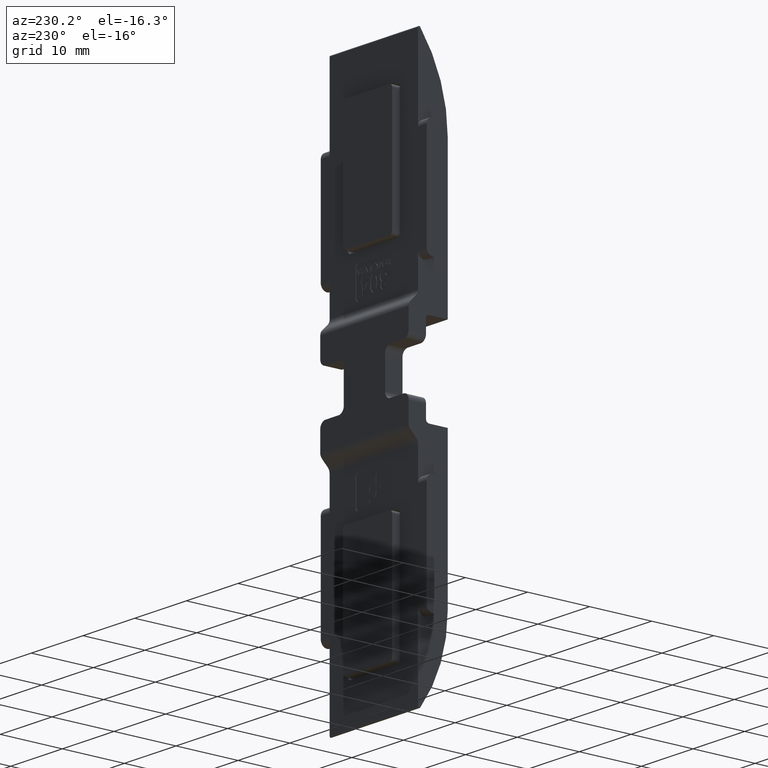
[diagram: clean part render]
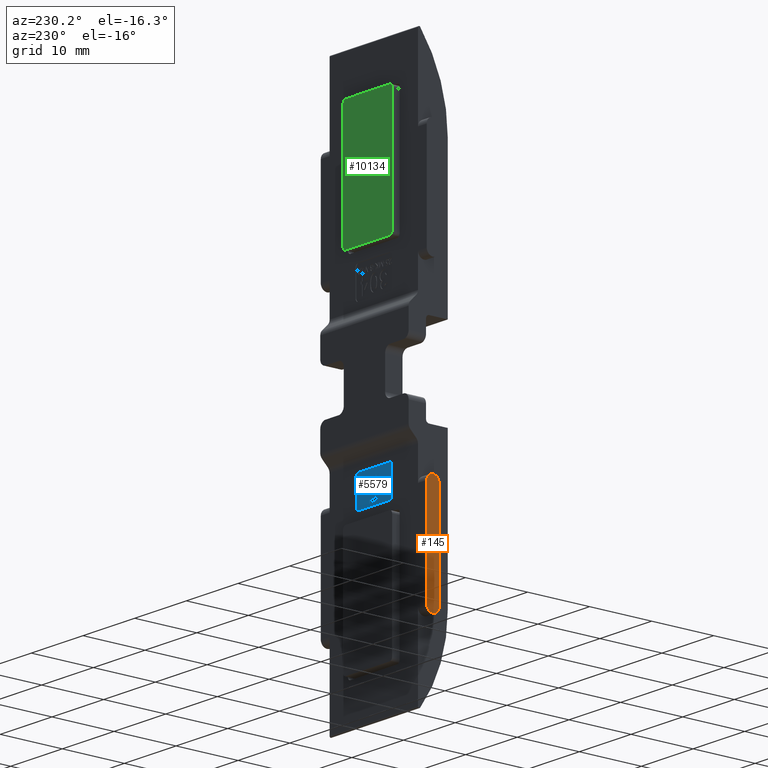
[diagram: same view with three faces highlighted in distinct colors, each labeled with its STEP entity id]
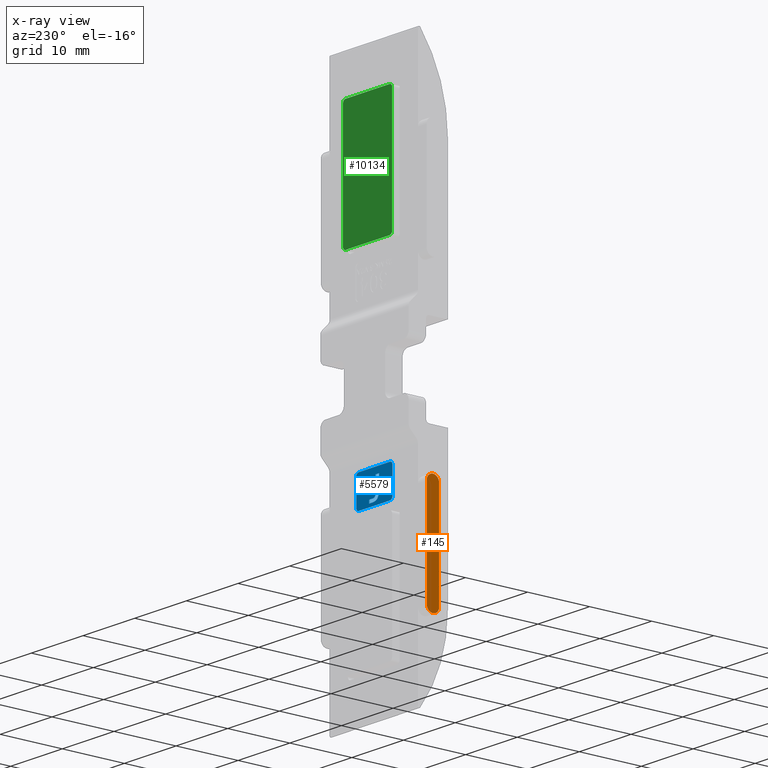
[diagram: x-ray of the same camera — body ghosted, the three highlighted faces saturated]
A machine part, auxiliary view with three faces highlighted in distinct colors.
The next image is the same camera in x-ray (body ghosted, the three faces saturated) — at least one of them is partly hidden behind the body in this view.
Their STEP definitions:

[orange] entity #145 — the highlighted planar face has unit normal (-1, 0, 0).
#126 = AXIS2_PLACEMENT_3D ( 'NONE', #8300, #2605, #9572 ) ;
#145 = ADVANCED_FACE ( 'NONE', ( #457 ), #7354, .T. ) ;
#457 = FACE_OUTER_BOUND ( 'NONE', #6140, .T. ) ;
#645 = VECTOR ( 'NONE', #11341, 1000.000000000000000 ) ;
#806 = CARTESIAN_POINT ( 'NONE',  ( -10.25000000000000000, 2.799999999999998500, -31.00000000000000000 ) ) ;
#816 = ORIENTED_EDGE ( 'NONE', *, *, #7956, .T. ) ;
#826 = DIRECTION ( 'NONE',  ( 0.0000000000000000000, 0.0000000000000000000, 1.000000000000000000 ) ) ;
#1366 = CARTESIAN_POINT ( 'NONE',  ( -10.25000000000000000, 2.799999999999998500, -31.00000000000000000 ) ) ;
#1497 = DIRECTION ( 'NONE',  ( 0.0000000000000000000, 0.0000000000000000000, 1.000000000000000000 ) ) ;
#1642 = VECTOR ( 'NONE', #6760, 1000.000000000000000 ) ;
#1842 = EDGE_CURVE ( 'NONE', #11228, #11997, #11989, .T. ) ;
#1900 = CARTESIAN_POINT ( 'NONE',  ( -10.25000000000000000, 2.799999999999998500, -15.00000000000000400 ) ) ;
#2177 = EDGE_CURVE ( 'NONE', #11997, #3639, #10938, .T. ) ;
#2605 = DIRECTION ( 'NONE',  ( -1.000000000000000000, 0.0000000000000000000, 0.0000000000000000000 ) ) ;
#2915 = ORIENTED_EDGE ( 'NONE', *, *, #6165, .T. ) ;
#3160 = LINE ( 'NONE', #806, #645 ) ;
#3183 = VERTEX_POINT ( 'NONE', #3676 ) ;
#3639 = VERTEX_POINT ( 'NONE', #1366 ) ;
#3676 = CARTESIAN_POINT ( 'NONE',  ( -10.25000000000000000, 4.799999999999998900, -15.00000000000000400 ) ) ;
#4070 = AXIS2_PLACEMENT_3D ( 'NONE', #9187, #9092, #1497 ) ;
#4790 = LINE ( 'NONE', #10647, #1642 ) ;
#4847 = CARTESIAN_POINT ( 'NONE',  ( -10.25000000000000000, 3.799999999999998500, -32.00000000000000000 ) ) ;
#5151 = AXIS2_PLACEMENT_3D ( 'NONE', #12212, #11370, #9378 ) ;
#5371 = ORIENTED_EDGE ( 'NONE', *, *, #2177, .T. ) ;
#5563 = CARTESIAN_POINT ( 'NONE',  ( -10.25000000000000000, 3.799999999999998500, -31.00000000000000000 ) ) ;
#6140 = EDGE_LOOP ( 'NONE', ( #7217, #5371, #10223, #816, #2915 ) ) ;
#6165 = EDGE_CURVE ( 'NONE', #3183, #11228, #4790, .T. ) ;
#6264 = AXIS2_PLACEMENT_3D ( 'NONE', #5563, #12235, #826 ) ;
#6760 = DIRECTION ( 'NONE',  ( -0.0000000000000000000, -0.0000000000000000000, -1.000000000000000000 ) ) ;
#7217 = ORIENTED_EDGE ( 'NONE', *, *, #1842, .T. ) ;
#7354 = PLANE ( 'NONE',  #126 ) ;
#7918 = CARTESIAN_POINT ( 'NONE',  ( -10.25000000000000000, 4.799999999999998900, -31.00000000000000000 ) ) ;
#7956 = EDGE_CURVE ( 'NONE', #8591, #3183, #9283, .T. ) ;
#8141 = EDGE_CURVE ( 'NONE', #3639, #8591, #3160, .T. ) ;
#8300 = CARTESIAN_POINT ( 'NONE',  ( -10.25000000000000000, 3.799999999999998500, -31.00000000000000000 ) ) ;
#8591 = VERTEX_POINT ( 'NONE', #1900 ) ;
#9092 = DIRECTION ( 'NONE',  ( -1.000000000000000000, 0.0000000000000000000, 0.0000000000000000000 ) ) ;
#9187 = CARTESIAN_POINT ( 'NONE',  ( -10.25000000000000000, 3.799999999999998500, -15.00000000000000400 ) ) ;
#9283 = CIRCLE ( 'NONE', #4070, 1.000000000000000900 ) ;
#9378 = DIRECTION ( 'NONE',  ( 0.0000000000000000000, 0.0000000000000000000, 1.000000000000000000 ) ) ;
#9572 = DIRECTION ( 'NONE',  ( 0.0000000000000000000, 0.0000000000000000000, 1.000000000000000000 ) ) ;
#10223 = ORIENTED_EDGE ( 'NONE', *, *, #8141, .T. ) ;
#10647 = CARTESIAN_POINT ( 'NONE',  ( -10.25000000000000000, 4.799999999999998900, -31.00000000000000000 ) ) ;
#10938 = CIRCLE ( 'NONE', #6264, 1.000000000000000900 ) ;
#11228 = VERTEX_POINT ( 'NONE', #7918 ) ;
#11341 = DIRECTION ( 'NONE',  ( 0.0000000000000000000, 0.0000000000000000000, 1.000000000000000000 ) ) ;
#11370 = DIRECTION ( 'NONE',  ( -1.000000000000000000, 0.0000000000000000000, 0.0000000000000000000 ) ) ;
#11989 = CIRCLE ( 'NONE', #5151, 1.000000000000000900 ) ;
#11997 = VERTEX_POINT ( 'NONE', #4847 ) ;
#12212 = CARTESIAN_POINT ( 'NONE',  ( -10.25000000000000000, 3.799999999999998500, -31.00000000000000000 ) ) ;
#12235 = DIRECTION ( 'NONE',  ( -1.000000000000000000, 0.0000000000000000000, 0.0000000000000000000 ) ) ;

[blue] entity #5579 — the highlighted planar face has unit normal (0, 1, 0).
#85 = CARTESIAN_POINT ( 'NONE',  ( 0.03725859233113291300, 4.699999999999994800, -14.93038602905815000 ) ) ;
#87 = EDGE_LOOP ( 'NONE', ( #4038, #11848, #10420, #4034, #10658, #8371, #1331, #7331, #11063, #5174, #1412, #7445 ) ) ;
#100 = CARTESIAN_POINT ( 'NONE',  ( -0.6776016348386776400, 4.699999999999995700, -15.01600458031692000 ) ) ;
#124 = EDGE_CURVE ( 'NONE', #5269, #11806, #7605, .T. ) ;
#142 = VECTOR ( 'NONE', #8394, 1000.000000000000000 ) ;
#162 = VERTEX_POINT ( 'NONE', #6563 ) ;
#321 = CARTESIAN_POINT ( 'NONE',  ( -3.499999999999998200, 4.699999999999994800, -11.00000000000000000 ) ) ;
#463 = VECTOR ( 'NONE', #4934, 1000.000000000000000 ) ;
#481 = LINE ( 'NONE', #8003, #10019 ) ;
#489 = ORIENTED_EDGE ( 'NONE', *, *, #6485, .T. ) ;
#520 = CARTESIAN_POINT ( 'NONE',  ( 3.000000000000001800, 4.699999999999994800, -11.50000000000000000 ) ) ;
#893 = CARTESIAN_POINT ( 'NONE',  ( 0.9901315789473702500, 4.699999999999995700, -14.99342105263158100 ) ) ;
#998 = CARTESIAN_POINT ( 'NONE',  ( 0.2679968910348799500, 4.699999999999994800, -14.99148092522244000 ) ) ;
#1028 = CARTESIAN_POINT ( 'NONE',  ( -0.05591264198570553000, 4.699999999999994800, -14.86808215880907900 ) ) ;
#1063 = CARTESIAN_POINT ( 'NONE',  ( 0.1453014849565216500, 4.699999999999997500, -14.97158568648310100 ) ) ;
#1068 = VECTOR ( 'NONE', #9744, 1000.000000000000000 ) ;
#1074 = CARTESIAN_POINT ( 'NONE',  ( -0.8510032393251922800, 4.699999999999995700, -14.30506441567509100 ) ) ;
#1080 = DIRECTION ( 'NONE',  ( 0.0000000000000000000, 3.847382694428521800E-016, -1.000000000000000000 ) ) ;
#1111 = ORIENTED_EDGE ( 'NONE', *, *, #9859, .T. ) ;
#1162 = CARTESIAN_POINT ( 'NONE',  ( -0.2555327986360639800, 4.699999999999996600, -15.38190903937706200 ) ) ;
#1236 = VERTEX_POINT ( 'NONE', #9831 ) ;
#1331 = ORIENTED_EDGE ( 'NONE', *, *, #3208, .T. ) ;
#1338 = EDGE_CURVE ( 'NONE', #2366, #4631, #3184, .T. ) ;
#1412 = ORIENTED_EDGE ( 'NONE', *, *, #4436, .T. ) ;
#1574 = VERTEX_POINT ( 'NONE', #9536 ) ;
#1616 = EDGE_CURVE ( 'NONE', #2080, #5269, #9311, .T. ) ;
#1661 = DIRECTION ( 'NONE',  ( -0.0000000000000000000, 1.000000000000000000, 1.734723475976806800E-016 ) ) ;
#1858 = CIRCLE ( 'NONE', #6703, 0.5000000000000004400 ) ;
#1944 = CARTESIAN_POINT ( 'NONE',  ( -0.8347712925667925000, 4.699999999999995700, -14.54544352344548100 ) ) ;
#1976 = VECTOR ( 'NONE', #2206, 1000.000000000000000 ) ;
#2080 = VERTEX_POINT ( 'NONE', #3719 ) ;
#2089 = EDGE_CURVE ( 'NONE', #3044, #2366, #9005, .T. ) ;
#2094 = CARTESIAN_POINT ( 'NONE',  ( -0.2530436260985025600, 4.699999999999994800, -14.35302774560744200 ) ) ;
#2099 = FACE_BOUND ( 'NONE', #87, .T. ) ;
#2100 = CARTESIAN_POINT ( 'NONE',  ( -3.499999999999998700, 4.699999999999995700, -16.00000000000000000 ) ) ;
#2206 = DIRECTION ( 'NONE',  ( 1.000000000000000000, 0.0000000000000000000, 0.0000000000000000000 ) ) ;
#2248 = LINE ( 'NONE', #2100, #1068 ) ;
#2327 = CARTESIAN_POINT ( 'NONE',  ( 0.4123149671052652200, 4.699999999999995700, -15.50000000000000200 ) ) ;
#2366 = VERTEX_POINT ( 'NONE', #6650 ) ;
#2488 = EDGE_CURVE ( 'NONE', #6595, #4534, #8372, .T. ) ;
#2538 = CARTESIAN_POINT ( 'NONE',  ( -3.499999999999998700, 4.699999999999995700, -15.50000000000000000 ) ) ;
#2749 = VECTOR ( 'NONE', #3519, 1000.000000000000000 ) ;
#2800 = LINE ( 'NONE', #9970, #9529 ) ;
#2841 = AXIS2_PLACEMENT_3D ( 'NONE', #5614, #8505, #4737 ) ;
#2844 = VECTOR ( 'NONE', #10067, 1000.000000000000000 ) ;
#2856 = CARTESIAN_POINT ( 'NONE',  ( -3.499999999999998200, 4.699999999999994800, -11.50000000000000000 ) ) ;
#2931 = CARTESIAN_POINT ( 'NONE',  ( 3.500000000000001800, 4.699999999999994800, -11.50000000000000000 ) ) ;
#2935 = CARTESIAN_POINT ( 'NONE',  ( -0.1343054203546719700, 4.699999999999995700, -14.78586959524675000 ) ) ;
#2946 = CARTESIAN_POINT ( 'NONE',  ( 0.2616099292266878500, 4.699999999999994800, -15.49716993698512700 ) ) ;
#2950 = EDGE_CURVE ( 'NONE', #1236, #6595, #11822, .T. ) ;
#2986 = CARTESIAN_POINT ( 'NONE',  ( 0.1174647490411164900, 4.699999999999996600, -15.48277408461940600 ) ) ;
#3044 = VERTEX_POINT ( 'NONE', #6979 ) ;
#3049 = VERTEX_POINT ( 'NONE', #9868 ) ;
#3170 = AXIS2_PLACEMENT_3D ( 'NONE', #10823, #1661, #10587 ) ;
#3184 = LINE ( 'NONE', #5329, #2749 ) ;
#3186 = PLANE ( 'NONE',  #3170 ) ;
#3208 = EDGE_CURVE ( 'NONE', #7511, #2080, #7329, .T. ) ;
#3274 = VERTEX_POINT ( 'NONE', #2931 ) ;
#3329 = CARTESIAN_POINT ( 'NONE',  ( -2.999999999999998700, 4.699999999999995700, -15.50000000000000000 ) ) ;
#3410 = DIRECTION ( 'NONE',  ( 0.0000000000000000000, 0.0000000000000000000, 1.000000000000000000 ) ) ;
#3451 = VECTOR ( 'NONE', #11451, 1000.000000000000000 ) ;
#3519 = DIRECTION ( 'NONE',  ( 0.0000000000000000000, -5.885668936349879100E-016, 1.000000000000000000 ) ) ;
#3579 = LINE ( 'NONE', #12370, #5823 ) ;
#3668 = CARTESIAN_POINT ( 'NONE',  ( -0.2532894736842085700, 4.699999999999995700, -13.98026315789473800 ) ) ;
#3719 = CARTESIAN_POINT ( 'NONE',  ( 0.3331620065789493400, 4.699999999999995700, -14.99342105263158100 ) ) ;
#3765 = CARTESIAN_POINT ( 'NONE',  ( 0.9901315789473702500, 4.699999999999995700, -14.99342105263158100 ) ) ;
#3855 = CARTESIAN_POINT ( 'NONE',  ( 0.08934643249877884100, 4.699999999999997500, -14.95354432873879200 ) ) ;
#3867 = CARTESIAN_POINT ( 'NONE',  ( -0.01659746324406184000, 4.699999999999994800, -15.45851555556036900 ) ) ;
#3903 = CARTESIAN_POINT ( 'NONE',  ( -0.1409402623722109400, 4.699999999999995700, -15.42484063405341200 ) ) ;
#3991 = CIRCLE ( 'NONE', #6769, 0.5000000000000004400 ) ;
#4015 = CARTESIAN_POINT ( 'NONE',  ( -0.2525658909537798500, 4.699999999999994800, -14.40621329806735500 ) ) ;
#4034 = ORIENTED_EDGE ( 'NONE', *, *, #2950, .T. ) ;
#4038 = ORIENTED_EDGE ( 'NONE', *, *, #1338, .T. ) ;
#4390 = VERTEX_POINT ( 'NONE', #8172 ) ;
#4436 = EDGE_CURVE ( 'NONE', #4390, #3044, #481, .T. ) ;
#4534 = VERTEX_POINT ( 'NONE', #5395 ) ;
#4631 = VERTEX_POINT ( 'NONE', #11055 ) ;
#4736 = EDGE_CURVE ( 'NONE', #8683, #3274, #5105, .T. ) ;
#4737 = DIRECTION ( 'NONE',  ( 0.0000000000000000000, 0.0000000000000000000, 1.000000000000000000 ) ) ;
#4741 = CARTESIAN_POINT ( 'NONE',  ( 0.3331620065789493400, 4.699999999999995700, -14.99342105263158100 ) ) ;
#4789 = CARTESIAN_POINT ( 'NONE',  ( -0.6131144347096165700, 4.699999999999996600, -15.10867788144072700 ) ) ;
#4862 = CARTESIAN_POINT ( 'NONE',  ( -0.1938594947123691800, 4.699999999999996600, -14.68146915329120700 ) ) ;
#4903 = CARTESIAN_POINT ( 'NONE',  ( -0.8519736842105244400, 4.699999999999995700, -14.25442023026315900 ) ) ;
#4932 = CARTESIAN_POINT ( 'NONE',  ( -0.2440725881185281100, 4.699999999999996600, -14.48307723884055800 ) ) ;
#4934 = DIRECTION ( 'NONE',  ( 1.000000000000000000, 0.0000000000000000000, 0.0000000000000000000 ) ) ;
#4967 = ORIENTED_EDGE ( 'NONE', *, *, #6009, .T. ) ;
#5016 = EDGE_CURVE ( 'NONE', #162, #1236, #8367, .T. ) ;
#5105 = CIRCLE ( 'NONE', #12043, 0.5000000000000004400 ) ;
#5169 = DIRECTION ( 'NONE',  ( 0.0000000000000000000, 0.0000000000000000000, 1.000000000000000000 ) ) ;
#5174 = ORIENTED_EDGE ( 'NONE', *, *, #5811, .T. ) ;
#5269 = VERTEX_POINT ( 'NONE', #11233 ) ;
#5273 = CARTESIAN_POINT ( 'NONE',  ( -0.2532894736842085700, 4.699999999999995700, -13.98026315789473800 ) ) ;
#5329 = CARTESIAN_POINT ( 'NONE',  ( -0.2532894736842085700, 4.699999999999995700, -13.47368421052631900 ) ) ;
#5369 = VERTEX_POINT ( 'NONE', #12205 ) ;
#5395 = CARTESIAN_POINT ( 'NONE',  ( 0.9901315789473702500, 4.699999999999995700, -15.50000000000000200 ) ) ;
#5450 = EDGE_CURVE ( 'NONE', #3049, #1574, #2248, .T. ) ;
#5546 = CARTESIAN_POINT ( 'NONE',  ( -0.2532894736842085700, 4.699999999999994800, -12.00000000000000200 ) ) ;
#5579 = ADVANCED_FACE ( 'NONE', ( #9871, #2099 ), #3186, .T. ) ;
#5613 = DIRECTION ( 'NONE',  ( -1.000000000000000000, 0.0000000000000000000, 0.0000000000000000000 ) ) ;
#5614 = CARTESIAN_POINT ( 'NONE',  ( 3.000000000000001800, 4.699999999999995700, -15.50000000000000000 ) ) ;
#5778 = EDGE_CURVE ( 'NONE', #5369, #8683, #10307, .T. ) ;
#5785 = CARTESIAN_POINT ( 'NONE',  ( -0.8491225826817272400, 4.699999999999996600, -14.40320942647109900 ) ) ;
#5811 = EDGE_CURVE ( 'NONE', #11806, #4390, #11800, .T. ) ;
#5822 = CARTESIAN_POINT ( 'NONE',  ( -0.8106357272081141700, 4.699999999999996600, -14.67769401786110400 ) ) ;
#5823 = VECTOR ( 'NONE', #7585, 1000.000000000000000 ) ;
#6009 = EDGE_CURVE ( 'NONE', #3274, #11950, #3579, .T. ) ;
#6484 = CIRCLE ( 'NONE', #2841, 0.5000000000000004400 ) ;
#6485 = EDGE_CURVE ( 'NONE', #11172, #5369, #1858, .T. ) ;
#6518 = DIRECTION ( 'NONE',  ( 0.0000000000000000000, 0.0000000000000000000, 1.000000000000000000 ) ) ;
#6563 = CARTESIAN_POINT ( 'NONE',  ( -0.8519736842105244400, 4.699999999999994800, -12.00000000000000200 ) ) ;
#6575 = ORIENTED_EDGE ( 'NONE', *, *, #5778, .T. ) ;
#6595 = VERTEX_POINT ( 'NONE', #2327 ) ;
#6650 = CARTESIAN_POINT ( 'NONE',  ( -0.2532894736842085700, 4.699999999999995700, -13.47368421052631900 ) ) ;
#6693 = LINE ( 'NONE', #7433, #142 ) ;
#6703 = AXIS2_PLACEMENT_3D ( 'NONE', #11973, #8157, #3410 ) ;
#6729 = CARTESIAN_POINT ( 'NONE',  ( -0.01155895623185761300, 4.699999999999996600, -14.90232880337297100 ) ) ;
#6769 = AXIS2_PLACEMENT_3D ( 'NONE', #3329, #7040, #5169 ) ;
#6979 = CARTESIAN_POINT ( 'NONE',  ( 0.9901315789473702500, 4.699999999999995700, -13.47368421052631900 ) ) ;
#7040 = DIRECTION ( 'NONE',  ( -0.0000000000000000000, 1.000000000000000000, 1.734723475976806800E-016 ) ) ;
#7268 = VERTEX_POINT ( 'NONE', #2538 ) ;
#7329 = LINE ( 'NONE', #3765, #3451 ) ;
#7331 = ORIENTED_EDGE ( 'NONE', *, *, #1616, .T. ) ;
#7431 = CARTESIAN_POINT ( 'NONE',  ( 3.000000000000002200, 4.699999999999994800, -11.00000000000000000 ) ) ;
#7433 = CARTESIAN_POINT ( 'NONE',  ( 0.9901315789473702500, 4.699999999999995700, -15.50000000000000200 ) ) ;
#7445 = ORIENTED_EDGE ( 'NONE', *, *, #2089, .T. ) ;
#7511 = VERTEX_POINT ( 'NONE', #893 ) ;
#7585 = DIRECTION ( 'NONE',  ( -8.673617379884034200E-017, 1.734723475976806800E-016, -1.000000000000000000 ) ) ;
#7605 = LINE ( 'NONE', #9238, #11497 ) ;
#7688 = CARTESIAN_POINT ( 'NONE',  ( -0.09762453951524802100, 4.699999999999995700, -14.82997054689079900 ) ) ;
#7726 = CARTESIAN_POINT ( 'NONE',  ( -0.5390044277736028000, 4.699999999999994800, -15.19164430634076800 ) ) ;
#7798 = CARTESIAN_POINT ( 'NONE',  ( -0.2532894736842085700, 4.699999999999995700, -14.32565789473684400 ) ) ;
#7815 = CARTESIAN_POINT ( 'NONE',  ( 0.4123149671052652200, 4.699999999999995700, -15.50000000000000200 ) ) ;
#7901 = CARTESIAN_POINT ( 'NONE',  ( 0.4123149671052652200, 4.699999999999995700, -15.50000000000000200 ) ) ;
#8003 = CARTESIAN_POINT ( 'NONE',  ( 0.9901315789473702500, 4.699999999999995700, -13.98026315789473800 ) ) ;
#8073 = DIRECTION ( 'NONE',  ( 0.0000000000000000000, 0.0000000000000000000, 1.000000000000000000 ) ) ;
#8157 = DIRECTION ( 'NONE',  ( -0.0000000000000000000, 1.000000000000000000, 1.734723475976806800E-016 ) ) ;
#8172 = CARTESIAN_POINT ( 'NONE',  ( 0.9901315789473702500, 4.699999999999995700, -13.98026315789473800 ) ) ;
#8359 = DIRECTION ( 'NONE',  ( -1.000000000000000000, 0.0000000000000000000, 0.0000000000000000000 ) ) ;
#8367 = LINE ( 'NONE', #9759, #12276 ) ;
#8371 = ORIENTED_EDGE ( 'NONE', *, *, #11019, .T. ) ;
#8372 = LINE ( 'NONE', #7901, #1976 ) ;
#8394 = DIRECTION ( 'NONE',  ( 0.0000000000000000000, 0.0000000000000000000, 1.000000000000000000 ) ) ;
#8505 = DIRECTION ( 'NONE',  ( -0.0000000000000000000, 1.000000000000000000, 1.734723475976806800E-016 ) ) ;
#8532 = ORIENTED_EDGE ( 'NONE', *, *, #5450, .T. ) ;
#8624 = CARTESIAN_POINT ( 'NONE',  ( 3.500000000000001300, 4.699999999999995700, -15.50000000000000000 ) ) ;
#8683 = VERTEX_POINT ( 'NONE', #7431 ) ;
#8742 = CARTESIAN_POINT ( 'NONE',  ( -0.4547326709868959000, 4.699999999999997500, -15.26502688338966100 ) ) ;
#8934 = DIRECTION ( 'NONE',  ( 0.0000000000000000000, 0.0000000000000000000, 1.000000000000000000 ) ) ;
#9005 = LINE ( 'NONE', #12195, #9313 ) ;
#9238 = CARTESIAN_POINT ( 'NONE',  ( -0.2532894736842085700, 4.699999999999995700, -14.32565789473684400 ) ) ;
#9311 = B_SPLINE_CURVE_WITH_KNOTS ( 'NONE', 3,
 ( #4741, #11457, #998, #9571, #1063, #3855, #85, #6729, #1028, #7688, #2935, #9620, #4862, #11533, #9692, #4932, #4015, #2094, #7798 ),
 .UNSPECIFIED., .F., .F.,
 ( 4, 1, 1, 1, 1, 1, 1, 1, 1, 1, 1, 1, 1, 1, 1, 1, 4 ),
 ( 0.0000000000000000000, 0.06538726743257136700, 0.1275692595122424300, 0.1878742465320363800, 0.2453584450797075000, 0.3013047124280395200, 0.3563515657573994600, 0.4115949911272657700, 0.4668612283349828400, 0.5233188407543520900, 0.5808293458544853100, 0.6411635878681433100, 0.7044984237415353700, 0.7713233648300144000, 0.8426482112756570300, 0.9190250962448267600, 1.000000000000000000 ),
 .UNSPECIFIED. ) ;
#9313 = VECTOR ( 'NONE', #5613, 1000.000000000000000 ) ;
#9358 = LINE ( 'NONE', #5546, #11285 ) ;
#9529 = VECTOR ( 'NONE', #11979, 1000.000000000000000 ) ;
#9536 = CARTESIAN_POINT ( 'NONE',  ( -2.999999999999998700, 4.699999999999995700, -16.00000000000000000 ) ) ;
#9571 = CARTESIAN_POINT ( 'NONE',  ( 0.2048112917381705000, 4.699999999999994000, -14.98451353978239600 ) ) ;
#9620 = CARTESIAN_POINT ( 'NONE',  ( -0.1661247789421752800, 4.699999999999995700, -14.73621423522720300 ) ) ;
#9671 = ORIENTED_EDGE ( 'NONE', *, *, #12177, .T. ) ;
#9692 = CARTESIAN_POINT ( 'NONE',  ( -0.2324683050020082700, 4.699999999999995700, -14.55468547600286500 ) ) ;
#9744 = DIRECTION ( 'NONE',  ( -1.000000000000000000, -0.0000000000000000000, -0.0000000000000000000 ) ) ;
#9759 = CARTESIAN_POINT ( 'NONE',  ( -0.8519736842105244400, 4.699999999999994800, -12.00000000000000200 ) ) ;
#9831 = CARTESIAN_POINT ( 'NONE',  ( -0.8519736842105244400, 4.699999999999995700, -14.25442023026315900 ) ) ;
#9859 = EDGE_CURVE ( 'NONE', #11950, #3049, #6484, .T. ) ;
#9868 = CARTESIAN_POINT ( 'NONE',  ( 3.000000000000001800, 4.699999999999995700, -16.00000000000000000 ) ) ;
#9871 = FACE_OUTER_BOUND ( 'NONE', #9971, .T. ) ;
#9970 = CARTESIAN_POINT ( 'NONE',  ( -3.499999999999998700, 4.699999999999995700, -16.00000000000000000 ) ) ;
#9971 = EDGE_LOOP ( 'NONE', ( #10649, #489, #6575, #11170, #4967, #1111, #8532, #9671 ) ) ;
#10019 = VECTOR ( 'NONE', #8934, 1000.000000000000000 ) ;
#10067 = DIRECTION ( 'NONE',  ( 1.000000000000000000, 0.0000000000000000000, 0.0000000000000000000 ) ) ;
#10307 = LINE ( 'NONE', #321, #463 ) ;
#10420 = ORIENTED_EDGE ( 'NONE', *, *, #5016, .T. ) ;
#10506 = CARTESIAN_POINT ( 'NONE',  ( -0.7315295221326436600, 4.699999999999997500, -14.91280660138855100 ) ) ;
#10549 = CARTESIAN_POINT ( 'NONE',  ( 0.3609515259333878600, 4.699999999999995700, -15.49903545510340700 ) ) ;
#10587 = DIRECTION ( 'NONE',  ( 0.0000000000000000000, -1.734723475976806800E-016, 1.000000000000000000 ) ) ;
#10649 = ORIENTED_EDGE ( 'NONE', *, *, #11598, .T. ) ;
#10658 = ORIENTED_EDGE ( 'NONE', *, *, #2488, .T. ) ;
#10823 = CARTESIAN_POINT ( 'NONE',  ( 0.0000000000000000000, 4.699999999999993100, 8.168970550508951000E-016 ) ) ;
#11006 = DIRECTION ( 'NONE',  ( -0.0000000000000000000, 1.000000000000000000, 1.734723475976806800E-016 ) ) ;
#11019 = EDGE_CURVE ( 'NONE', #4534, #7511, #6693, .T. ) ;
#11055 = CARTESIAN_POINT ( 'NONE',  ( -0.2532894736842085700, 4.699999999999994800, -12.00000000000000200 ) ) ;
#11063 = ORIENTED_EDGE ( 'NONE', *, *, #124, .T. ) ;
#11170 = ORIENTED_EDGE ( 'NONE', *, *, #4736, .T. ) ;
#11172 = VERTEX_POINT ( 'NONE', #2856 ) ;
#11233 = CARTESIAN_POINT ( 'NONE',  ( -0.2532894736842085700, 4.699999999999995700, -14.32565789473684400 ) ) ;
#11285 = VECTOR ( 'NONE', #8359, 1000.000000000000000 ) ;
#11451 = DIRECTION ( 'NONE',  ( -1.000000000000000000, 0.0000000000000000000, 0.0000000000000000000 ) ) ;
#11457 = CARTESIAN_POINT ( 'NONE',  ( 0.3110794737679544200, 4.699999999999995700, -14.99276360076009800 ) ) ;
#11497 = VECTOR ( 'NONE', #6518, 1000.000000000000000 ) ;
#11533 = CARTESIAN_POINT ( 'NONE',  ( -0.2147729374361385100, 4.699999999999994800, -14.62048228836234800 ) ) ;
#11587 = CARTESIAN_POINT ( 'NONE',  ( -0.3600527618553091600, 4.699999999999994800, -15.32826080378609400 ) ) ;
#11598 = EDGE_CURVE ( 'NONE', #7268, #11172, #2800, .T. ) ;
#11621 = CARTESIAN_POINT ( 'NONE',  ( -0.7761522892124413900, 4.699999999999994800, -14.80019860638671300 ) ) ;
#11800 = LINE ( 'NONE', #5273, #2844 ) ;
#11806 = VERTEX_POINT ( 'NONE', #3668 ) ;
#11822 = B_SPLINE_CURVE_WITH_KNOTS ( 'NONE', 3,
 ( #4903, #1074, #5785, #1944, #5822, #11621, #10506, #100, #4789, #7726, #8742, #11587, #1162, #3903, #3867, #2986, #2946, #10549, #7815 ),
 .UNSPECIFIED., .F., .F.,
 ( 4, 1, 1, 1, 1, 1, 1, 1, 1, 1, 1, 1, 1, 1, 1, 1, 4 ),
 ( 0.0000000000000000000, 0.07453845520581337000, 0.1444504918262254100, 0.2101677375825613800, 0.2721963707622138100, 0.3314656389853722400, 0.3881647594317123600, 0.4432083661898384400, 0.4972174735506605400, 0.5515223594763398700, 0.6072412350771898600, 0.6644034634185596000, 0.7240751870890536100, 0.7870294039603268300, 0.8537883146472153900, 0.9244029132989333200, 1.000000000000000000 ),
 .UNSPECIFIED. ) ;
#11848 = ORIENTED_EDGE ( 'NONE', *, *, #12350, .T. ) ;
#11950 = VERTEX_POINT ( 'NONE', #8624 ) ;
#11973 = CARTESIAN_POINT ( 'NONE',  ( -2.999999999999998200, 4.699999999999994800, -11.50000000000000000 ) ) ;
#11979 = DIRECTION ( 'NONE',  ( 8.673617379884034200E-017, -1.734723475976806800E-016, 1.000000000000000000 ) ) ;
#12043 = AXIS2_PLACEMENT_3D ( 'NONE', #520, #11006, #8073 ) ;
#12177 = EDGE_CURVE ( 'NONE', #1574, #7268, #3991, .T. ) ;
#12195 = CARTESIAN_POINT ( 'NONE',  ( 0.9901315789473702500, 4.699999999999995700, -13.47368421052631900 ) ) ;
#12205 = CARTESIAN_POINT ( 'NONE',  ( -2.999999999999998200, 4.699999999999994800, -11.00000000000000000 ) ) ;
#12276 = VECTOR ( 'NONE', #1080, 1000.000000000000000 ) ;
#12350 = EDGE_CURVE ( 'NONE', #4631, #162, #9358, .T. ) ;
#12370 = CARTESIAN_POINT ( 'NONE',  ( 3.500000000000001300, 4.699999999999995700, -16.00000000000000000 ) ) ;

[green] entity #10134 — the highlighted planar face has unit normal (0, 1, 0).
#383 = VERTEX_POINT ( 'NONE', #10834 ) ;
#551 = CARTESIAN_POINT ( 'NONE',  ( 4.749999999999998200, 1.000000000000000000, -9.750000000000001800 ) ) ;
#552 = PLANE ( 'NONE',  #5802 ) ;
#578 = VECTOR ( 'NONE', #6056, 1000.000000000000000 ) ;
#638 = CARTESIAN_POINT ( 'NONE',  ( -4.749999999999998200, 1.000000000000000000, 9.749999999999998200 ) ) ;
#724 = CARTESIAN_POINT ( 'NONE',  ( 4.249999999999999100, 1.000000000000000000, -9.250000000000001800 ) ) ;
#804 = DIRECTION ( 'NONE',  ( 0.0000000000000000000, 1.000000000000000000, 0.0000000000000000000 ) ) ;
#981 = ORIENTED_EDGE ( 'NONE', *, *, #6932, .T. ) ;
#1009 = DIRECTION ( 'NONE',  ( 0.0000000000000000000, 1.000000000000000000, 0.0000000000000000000 ) ) ;
#1847 = CARTESIAN_POINT ( 'NONE',  ( -4.250000000000001800, 1.000000000000000000, -9.750000000000001800 ) ) ;
#1904 = LINE ( 'NONE', #9824, #578 ) ;
#2079 = CARTESIAN_POINT ( 'NONE',  ( -4.249999999999998200, 1.000000000000000000, 9.749999999999998200 ) ) ;
#2396 = CIRCLE ( 'NONE', #9654, 0.5000000000000004400 ) ;
#2459 = AXIS2_PLACEMENT_3D ( 'NONE', #9132, #5343, #9220 ) ;
#2484 = CARTESIAN_POINT ( 'NONE',  ( 0.0000000000000000000, 1.000000000000000000, 0.0000000000000000000 ) ) ;
#2661 = VERTEX_POINT ( 'NONE', #5186 ) ;
#2686 = AXIS2_PLACEMENT_3D ( 'NONE', #724, #804, #10341 ) ;
#3040 = LINE ( 'NONE', #7910, #3632 ) ;
#3524 = EDGE_CURVE ( 'NONE', #7598, #5028, #2396, .T. ) ;
#3616 = DIRECTION ( 'NONE',  ( 1.000000000000000000, 0.0000000000000000000, 0.0000000000000000000 ) ) ;
#3632 = VECTOR ( 'NONE', #7964, 1000.000000000000000 ) ;
#3850 = EDGE_CURVE ( 'NONE', #5028, #6507, #11253, .T. ) ;
#4189 = ORIENTED_EDGE ( 'NONE', *, *, #3524, .T. ) ;
#4366 = ORIENTED_EDGE ( 'NONE', *, *, #3850, .T. ) ;
#4384 = AXIS2_PLACEMENT_3D ( 'NONE', #4821, #12304, #4660 ) ;
#4660 = DIRECTION ( 'NONE',  ( 0.0000000000000000000, 0.0000000000000000000, 1.000000000000000000 ) ) ;
#4798 = EDGE_CURVE ( 'NONE', #11938, #7598, #7788, .T. ) ;
#4821 = CARTESIAN_POINT ( 'NONE',  ( -4.250000000000001800, 1.000000000000000000, -9.250000000000001800 ) ) ;
#5028 = VERTEX_POINT ( 'NONE', #11665 ) ;
#5186 = CARTESIAN_POINT ( 'NONE',  ( -4.749999999999998200, 1.000000000000000000, 9.249999999999998200 ) ) ;
#5343 = DIRECTION ( 'NONE',  ( 0.0000000000000000000, 1.000000000000000000, 0.0000000000000000000 ) ) ;
#5628 = CIRCLE ( 'NONE', #2686, 0.5000000000000004400 ) ;
#5802 = AXIS2_PLACEMENT_3D ( 'NONE', #2484, #7117, #9046 ) ;
#5951 = VERTEX_POINT ( 'NONE', #1847 ) ;
#6056 = DIRECTION ( 'NONE',  ( -1.000000000000000000, -0.0000000000000000000, -0.0000000000000000000 ) ) ;
#6313 = ORIENTED_EDGE ( 'NONE', *, *, #6654, .T. ) ;
#6507 = VERTEX_POINT ( 'NONE', #12217 ) ;
#6654 = EDGE_CURVE ( 'NONE', #2661, #11938, #7221, .T. ) ;
#6932 = EDGE_CURVE ( 'NONE', #5951, #9280, #8395, .T. ) ;
#7117 = DIRECTION ( 'NONE',  ( 0.0000000000000000000, 1.000000000000000000, 0.0000000000000000000 ) ) ;
#7129 = EDGE_CURVE ( 'NONE', #9280, #2661, #3040, .T. ) ;
#7221 = CIRCLE ( 'NONE', #2459, 0.5000000000000004400 ) ;
#7582 = ORIENTED_EDGE ( 'NONE', *, *, #11283, .T. ) ;
#7598 = VERTEX_POINT ( 'NONE', #11599 ) ;
#7788 = LINE ( 'NONE', #638, #12127 ) ;
#7910 = CARTESIAN_POINT ( 'NONE',  ( -4.750000000000001800, 1.000000000000000000, -9.750000000000001800 ) ) ;
#7964 = DIRECTION ( 'NONE',  ( 1.779203565104417600E-016, 0.0000000000000000000, 1.000000000000000000 ) ) ;
#8395 = CIRCLE ( 'NONE', #4384, 0.5000000000000004400 ) ;
#8719 = VECTOR ( 'NONE', #11153, 1000.000000000000000 ) ;
#9046 = DIRECTION ( 'NONE',  ( 0.0000000000000000000, -0.0000000000000000000, 1.000000000000000000 ) ) ;
#9132 = CARTESIAN_POINT ( 'NONE',  ( -4.249999999999998200, 1.000000000000000000, 9.249999999999998200 ) ) ;
#9220 = DIRECTION ( 'NONE',  ( 0.0000000000000000000, 0.0000000000000000000, 1.000000000000000000 ) ) ;
#9280 = VERTEX_POINT ( 'NONE', #11917 ) ;
#9593 = DIRECTION ( 'NONE',  ( 0.0000000000000000000, 0.0000000000000000000, 1.000000000000000000 ) ) ;
#9654 = AXIS2_PLACEMENT_3D ( 'NONE', #10589, #1009, #9593 ) ;
#9824 = CARTESIAN_POINT ( 'NONE',  ( -4.750000000000001800, 1.000000000000000000, -9.750000000000001800 ) ) ;
#10134 = ADVANCED_FACE ( 'NONE', ( #12007 ), #552, .T. ) ;
#10190 = ORIENTED_EDGE ( 'NONE', *, *, #12261, .T. ) ;
#10341 = DIRECTION ( 'NONE',  ( 0.0000000000000000000, 0.0000000000000000000, 1.000000000000000000 ) ) ;
#10345 = ORIENTED_EDGE ( 'NONE', *, *, #7129, .T. ) ;
#10589 = CARTESIAN_POINT ( 'NONE',  ( 4.250000000000000900, 1.000000000000000000, 9.249999999999998200 ) ) ;
#10785 = ORIENTED_EDGE ( 'NONE', *, *, #4798, .T. ) ;
#10834 = CARTESIAN_POINT ( 'NONE',  ( 4.249999999999999100, 1.000000000000000000, -9.750000000000001800 ) ) ;
#11072 = EDGE_LOOP ( 'NONE', ( #10345, #6313, #10785, #4189, #4366, #10190, #7582, #981 ) ) ;
#11153 = DIRECTION ( 'NONE',  ( -1.334402673828313300E-016, -0.0000000000000000000, -1.000000000000000000 ) ) ;
#11253 = LINE ( 'NONE', #551, #8719 ) ;
#11283 = EDGE_CURVE ( 'NONE', #383, #5951, #1904, .T. ) ;
#11599 = CARTESIAN_POINT ( 'NONE',  ( 4.250000000000000900, 1.000000000000000000, 9.749999999999998200 ) ) ;
#11665 = CARTESIAN_POINT ( 'NONE',  ( 4.750000000000000900, 1.000000000000000000, 9.249999999999998200 ) ) ;
#11917 = CARTESIAN_POINT ( 'NONE',  ( -4.750000000000001800, 1.000000000000000000, -9.250000000000001800 ) ) ;
#11938 = VERTEX_POINT ( 'NONE', #2079 ) ;
#12007 = FACE_OUTER_BOUND ( 'NONE', #11072, .T. ) ;
#12127 = VECTOR ( 'NONE', #3616, 1000.000000000000000 ) ;
#12217 = CARTESIAN_POINT ( 'NONE',  ( 4.749999999999998200, 1.000000000000000000, -9.250000000000001800 ) ) ;
#12261 = EDGE_CURVE ( 'NONE', #6507, #383, #5628, .T. ) ;
#12304 = DIRECTION ( 'NONE',  ( 0.0000000000000000000, 1.000000000000000000, 0.0000000000000000000 ) ) ;